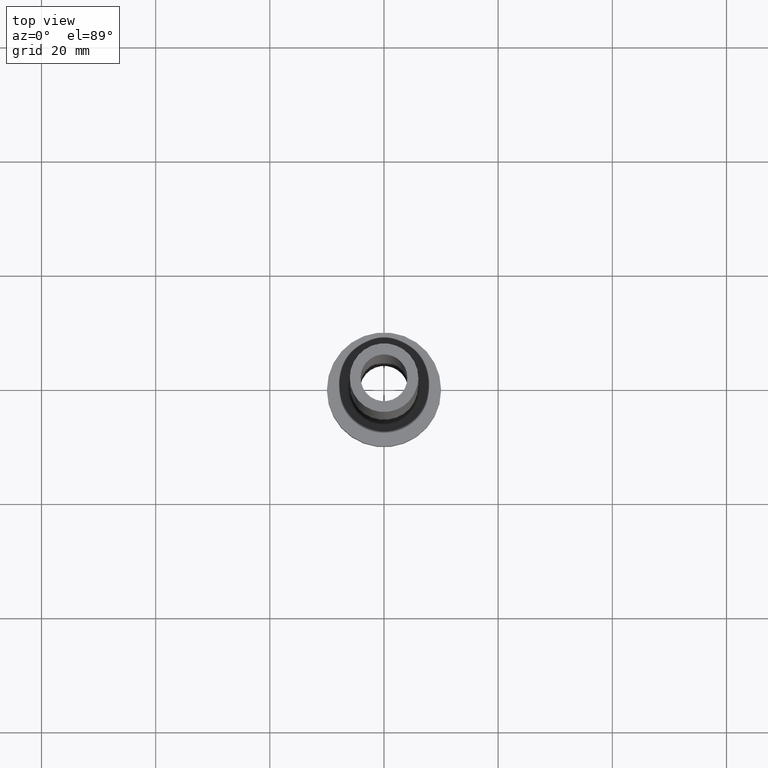
[diagram: clean part render]
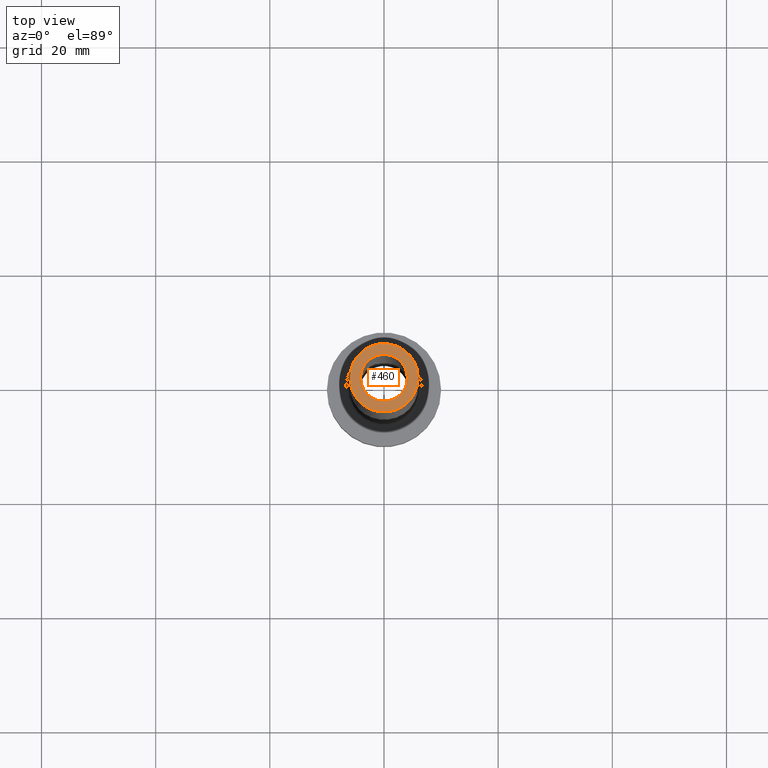
[diagram: same view with one face highlighted and labeled with its STEP entity id]
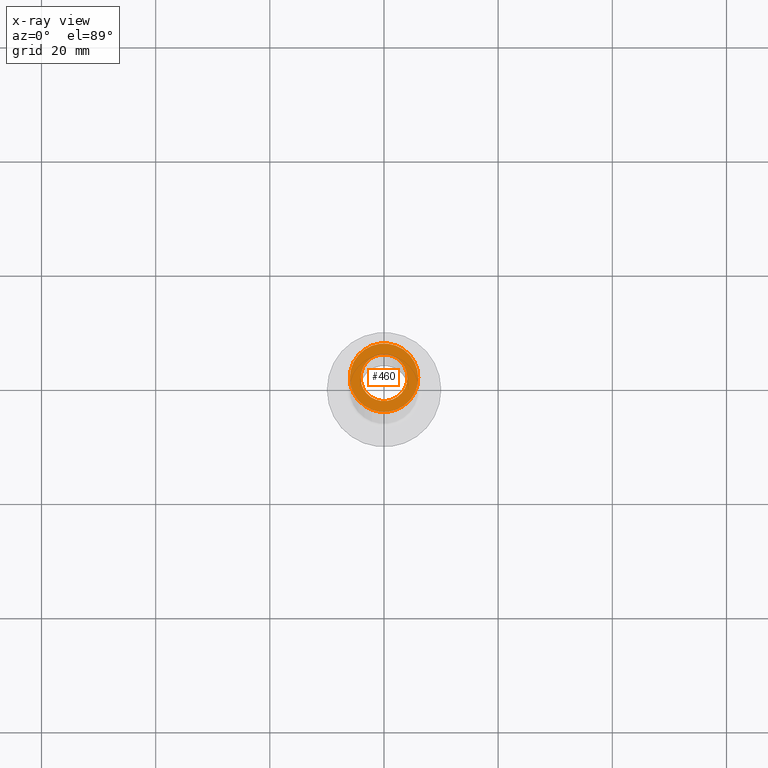
[diagram: x-ray of the same camera — body ghosted, the highlighted face saturated]
A machine part, top view. The second image highlights one B-rep face of the part: STEP entity #460.
The next image is the same camera in x-ray: the body ghosted, the highlighted face saturated — about 0% of this face is hidden behind the body in this view.
In plain terms, the highlighted planar face has unit normal (0, 0, 1).
Its self-contained STEP definition (entity closure, byte-faithful):
#4 = DIRECTION ( 'NONE',  ( 1.000000000000000000, 0.000000000000000000, 0.000000000000000000 ) ) ;
#14 = DIRECTION ( 'NONE',  ( 1.000000000000000000, 0.000000000000000000, 0.000000000000000000 ) ) ;
#15 = CIRCLE ( 'NONE', #258, 6.000000000000000888 ) ;
#21 = EDGE_LOOP ( 'NONE', ( #102, #209 ) ) ;
#26 = EDGE_CURVE ( 'NONE', #51, #365, #15, .T. ) ;
#33 = CARTESIAN_POINT ( 'NONE',  ( -4.099999999999999645, 0.000000000000000000, 125.0000000000000000 ) ) ;
#51 = VERTEX_POINT ( 'NONE', #61 ) ;
#54 = CIRCLE ( 'NONE', #432, 4.099999999999999645 ) ;
#60 = EDGE_CURVE ( 'NONE', #245, #86, #54, .T. ) ;
#61 = CARTESIAN_POINT ( 'NONE',  ( 6.000000000000000888, 7.347880794884120722E-16, 125.0000000000000000 ) ) ;
#86 = VERTEX_POINT ( 'NONE', #33 ) ;
#91 = FACE_OUTER_BOUND ( 'NONE', #21, .T. ) ;
#96 = PLANE ( 'NONE',  #105 ) ;
#97 = DIRECTION ( 'NONE',  ( 1.000000000000000000, 0.000000000000000000, 0.000000000000000000 ) ) ;
#102 = ORIENTED_EDGE ( 'NONE', *, *, #401, .T. ) ;
#105 = AXIS2_PLACEMENT_3D ( 'NONE', #375, #198, #156 ) ;
#134 = CARTESIAN_POINT ( 'NONE',  ( 0.000000000000000000, 0.000000000000000000, 125.0000000000000000 ) ) ;
#151 = CARTESIAN_POINT ( 'NONE',  ( -6.000000000000000888, 0.000000000000000000, 125.0000000000000000 ) ) ;
#156 = DIRECTION ( 'NONE',  ( 1.000000000000000000, 0.000000000000000000, -0.000000000000000000 ) ) ;
#198 = DIRECTION ( 'NONE',  ( 0.000000000000000000, 0.000000000000000000, 1.000000000000000000 ) ) ;
#200 = ORIENTED_EDGE ( 'NONE', *, *, #60, .F. ) ;
#205 = CARTESIAN_POINT ( 'NONE',  ( 0.000000000000000000, 0.000000000000000000, 125.0000000000000000 ) ) ;
#209 = ORIENTED_EDGE ( 'NONE', *, *, #26, .T. ) ;
#211 = DIRECTION ( 'NONE',  ( 1.000000000000000000, 0.000000000000000000, 0.000000000000000000 ) ) ;
#218 = CIRCLE ( 'NONE', #319, 6.000000000000000888 ) ;
#234 = AXIS2_PLACEMENT_3D ( 'NONE', #261, #298, #4 ) ;
#244 = DIRECTION ( 'NONE',  ( 0.000000000000000000, 0.000000000000000000, 1.000000000000000000 ) ) ;
#245 = VERTEX_POINT ( 'NONE', #358 ) ;
#258 = AXIS2_PLACEMENT_3D ( 'NONE', #134, #244, #97 ) ;
#261 = CARTESIAN_POINT ( 'NONE',  ( 0.000000000000000000, 0.000000000000000000, 125.0000000000000000 ) ) ;
#268 = EDGE_CURVE ( 'NONE', #86, #245, #342, .T. ) ;
#271 = DIRECTION ( 'NONE',  ( 0.000000000000000000, 0.000000000000000000, 1.000000000000000000 ) ) ;
#298 = DIRECTION ( 'NONE',  ( 0.000000000000000000, 0.000000000000000000, 1.000000000000000000 ) ) ;
#319 = AXIS2_PLACEMENT_3D ( 'NONE', #205, #271, #14 ) ;
#337 = EDGE_LOOP ( 'NONE', ( #341, #200 ) ) ;
#341 = ORIENTED_EDGE ( 'NONE', *, *, #268, .F. ) ;
#342 = CIRCLE ( 'NONE', #234, 4.099999999999999645 ) ;
#347 = CARTESIAN_POINT ( 'NONE',  ( 0.000000000000000000, 0.000000000000000000, 125.0000000000000000 ) ) ;
#358 = CARTESIAN_POINT ( 'NONE',  ( 4.099999999999999645, 5.021051876504146399E-16, 125.0000000000000000 ) ) ;
#365 = VERTEX_POINT ( 'NONE', #151 ) ;
#375 = CARTESIAN_POINT ( 'NONE',  ( 0.000000000000000000, 0.000000000000000000, 125.0000000000000000 ) ) ;
#401 = EDGE_CURVE ( 'NONE', #365, #51, #218, .T. ) ;
#432 = AXIS2_PLACEMENT_3D ( 'NONE', #347, #456, #211 ) ;
#447 = FACE_BOUND ( 'NONE', #337, .T. ) ;
#456 = DIRECTION ( 'NONE',  ( 0.000000000000000000, 0.000000000000000000, 1.000000000000000000 ) ) ;
#460 = ADVANCED_FACE ( 'NONE', ( #447, #91 ), #96, .T. ) ;